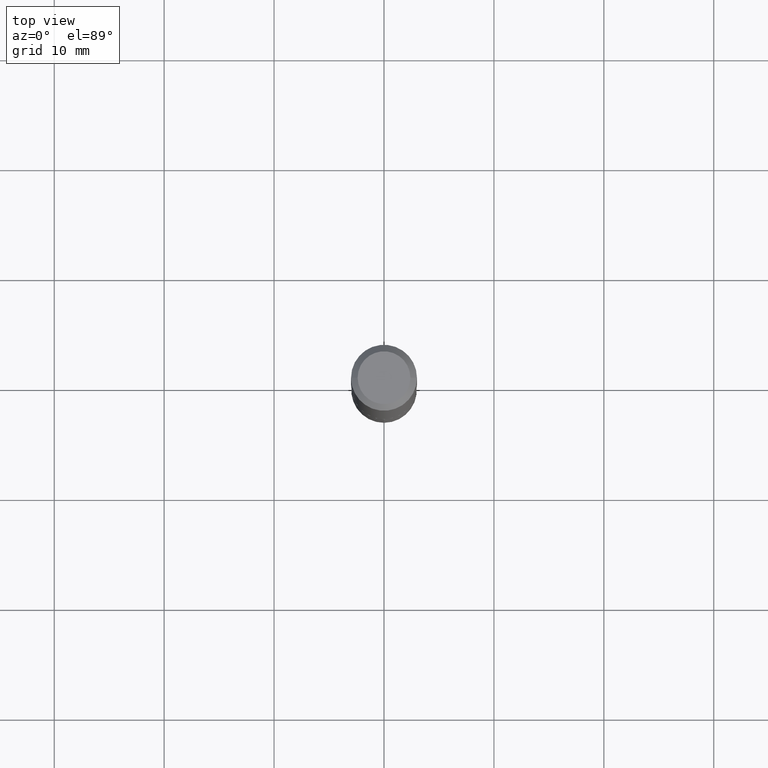
[diagram: clean part render]
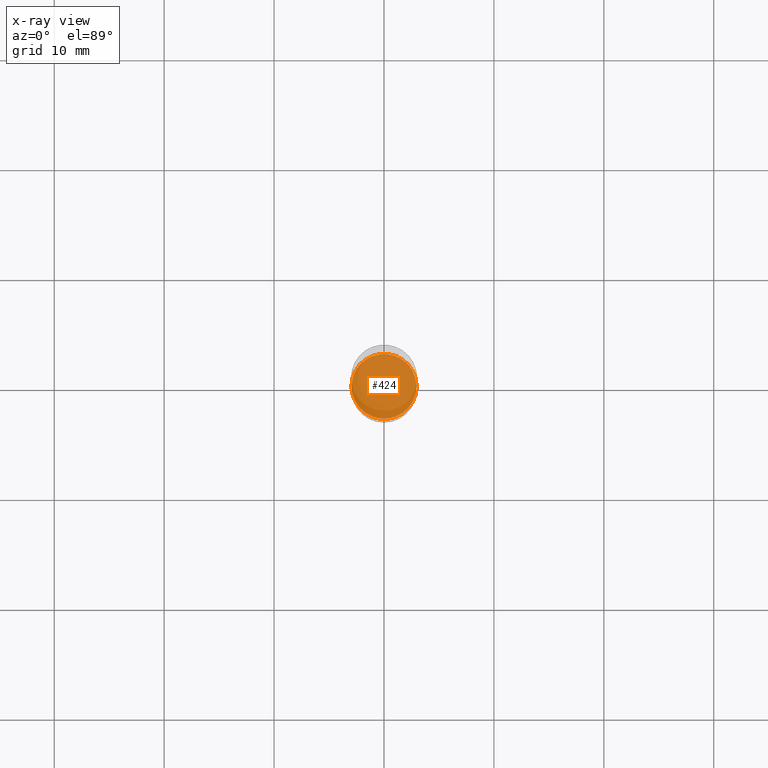
[diagram: x-ray — body ghosted, one internal face saturated and labeled with its STEP entity id]
A machine part, top view, then the same camera in x-ray: the body is ghosted and one INTERNAL B-rep face — a face not visible from any outside direction — is saturated and labeled: STEP entity #424.
In plain terms, the highlighted planar face has unit normal (-0, 0, 1).
Its self-contained STEP definition (entity closure, byte-faithful):
#5 = AXIS2_PLACEMENT_3D ( 'NONE', #481, #365, #172 ) ;
#13 = AXIS2_PLACEMENT_3D ( 'NONE', #42, #180, #65 ) ;
#28 = PLANE ( 'NONE',  #337 ) ;
#42 = CARTESIAN_POINT ( 'NONE',  ( 4.428744008001282238E-29, -6.323072704644935995E-15, -1.810999999999999943 ) ) ;
#51 = DIRECTION ( 'NONE',  ( -2.438088387897960049E-29, 3.491481338843145188E-15, 1.000000000000000000 ) ) ;
#57 = FACE_OUTER_BOUND ( 'NONE', #154, .T. ) ;
#65 = DIRECTION ( 'NONE',  ( 1.000000000000000000, -6.982962677686265133E-15, 0.000000000000000000 ) ) ;
#140 = CARTESIAN_POINT ( 'NONE',  ( 4.428744008001282238E-29, -6.323072704644935995E-15, -1.810999999999999943 ) ) ;
#150 = EDGE_CURVE ( 'NONE', #432, #408, #184, .T. ) ;
#154 = EDGE_LOOP ( 'NONE', ( #324, #262 ) ) ;
#172 = DIRECTION ( 'NONE',  ( 1.000000000000000000, -6.982962677686265133E-15, 0.000000000000000000 ) ) ;
#180 = DIRECTION ( 'NONE',  ( -2.445468806185136597E-29, 3.491481338843145583E-15, 1.000000000000000000 ) ) ;
#184 = CIRCLE ( 'NONE', #13, 0.1166999999999999982 ) ;
#214 = CARTESIAN_POINT ( 'NONE',  ( 0.1166999999999999982, -7.137984449130923049E-15, -1.810999999999999943 ) ) ;
#262 = ORIENTED_EDGE ( 'NONE', *, *, #150, .F. ) ;
#324 = ORIENTED_EDGE ( 'NONE', *, *, #471, .F. ) ;
#337 = AXIS2_PLACEMENT_3D ( 'NONE', #140, #51, #434 ) ;
#365 = DIRECTION ( 'NONE',  ( -2.445468806185136597E-29, 3.491481338843145583E-15, 1.000000000000000000 ) ) ;
#397 = CARTESIAN_POINT ( 'NONE',  ( -0.1166999999999999982, -5.491220104838787693E-15, -1.810999999999999943 ) ) ;
#408 = VERTEX_POINT ( 'NONE', #214 ) ;
#417 = CIRCLE ( 'NONE', #5, 0.1166999999999999982 ) ;
#424 = ADVANCED_FACE ( 'NONE', ( #57 ), #28, .F. ) ;
#432 = VERTEX_POINT ( 'NONE', #397 ) ;
#434 = DIRECTION ( 'NONE',  ( 1.000000000000000000, -6.982962677686265922E-15, 4.876176775795935793E-29 ) ) ;
#471 = EDGE_CURVE ( 'NONE', #408, #432, #417, .T. ) ;
#481 = CARTESIAN_POINT ( 'NONE',  ( 4.428744008001282238E-29, -6.323072704644935995E-15, -1.810999999999999943 ) ) ;